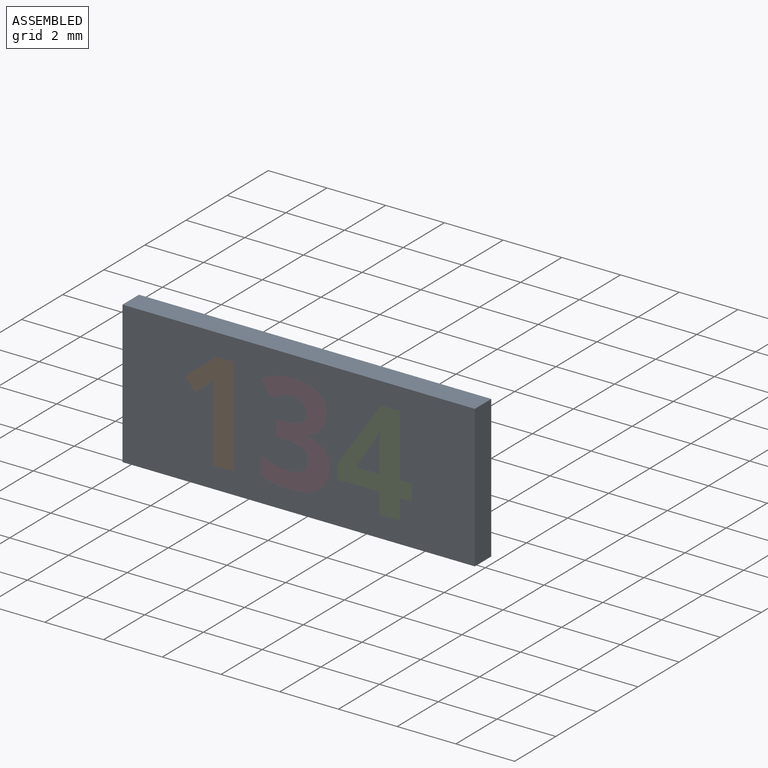
[diagram: assembled view]
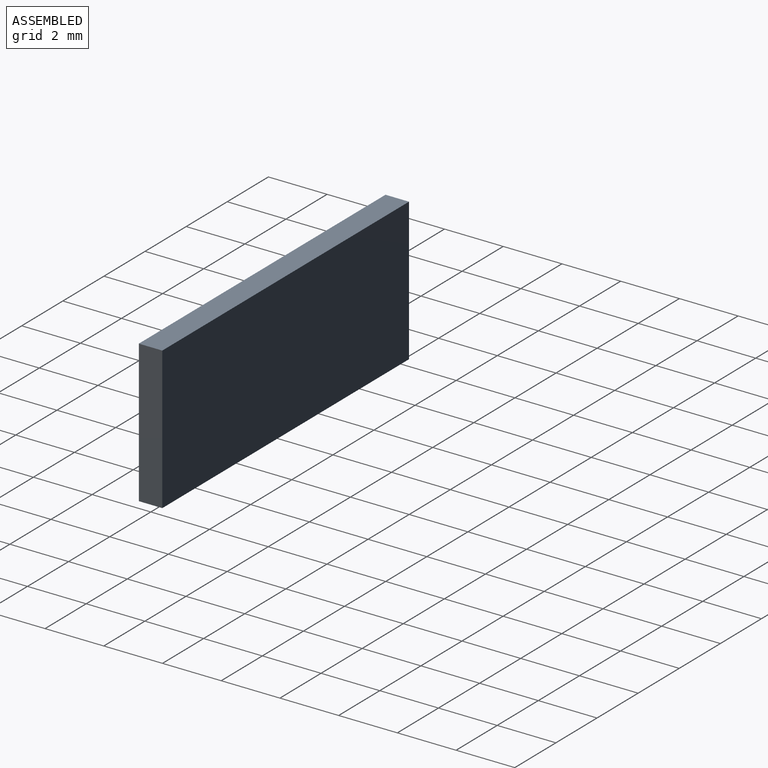
[diagram: assembled view, second angle]
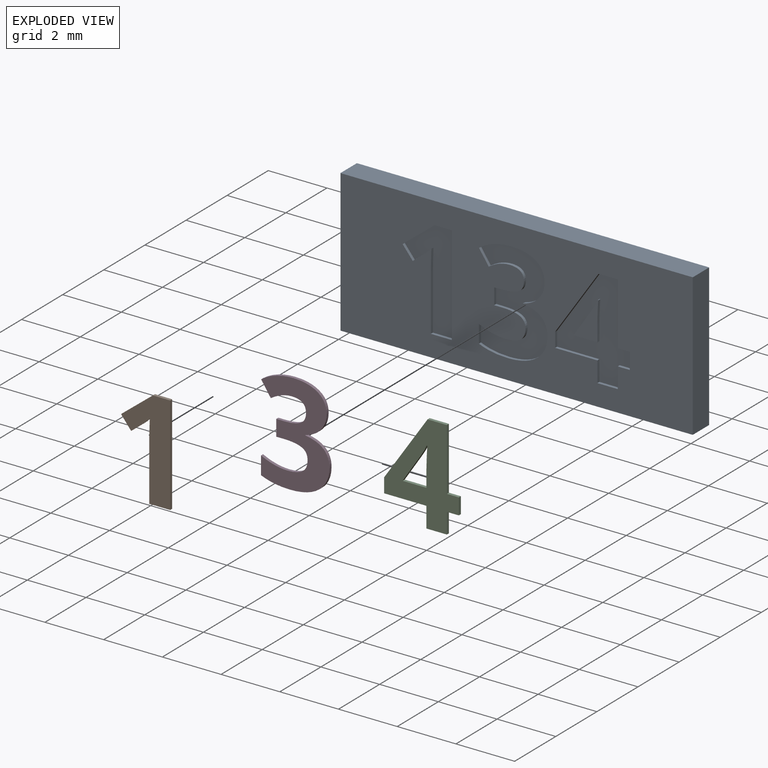
[diagram: exploded view]
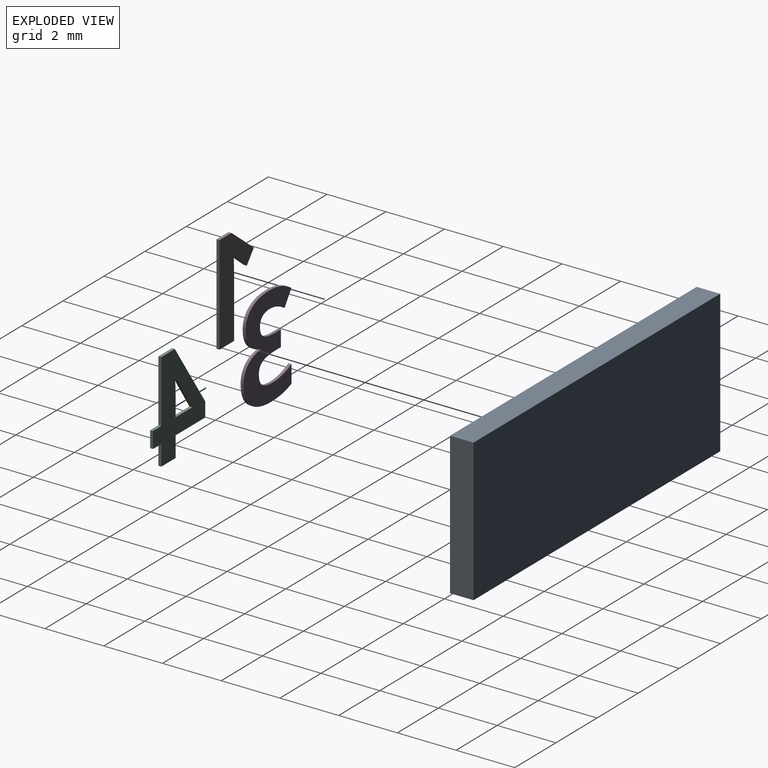
[diagram: exploded view, second angle]
ASSEMBLY  parts=4 mates=3
PART A: 65 faces, bbox 12x0.8x4.9 mm
  f0: plane 12x4.85mm, normal (0,-1,0), area 46.2mm2, adj f1,f2,f3,f4,f6,f7,f8,f9
  f1: plane 12x0.8mm, normal (0,0,-1), area 9.6mm2, adj f0,f2,f4,f5
  f2: plane 4.85x0.8mm, normal (1,0,0), area 3.9mm2, adj f0,f1,f3,f5
  f3: plane 12x0.8mm, normal (0,0,1), area 9.6mm2, adj f0,f2,f4,f5
  f4: plane 4.85x0.8mm, normal (-1,0,0), area 3.9mm2, adj f0,f1,f3,f5
  f5: plane 12x4.85mm, normal (0,1,0), area 58.2mm2, adj f1,f2,f3,f4
  f6: plane 0.55x0.1mm, normal (-1,0,0), area 0.1mm2, adj f0,f7,f23,f24
  f7: plane 0.41x0.1mm, normal (0,0,-1), area 0mm2, adj f0,f6,f8,f24
  f8: plane 2.12x0.1mm, normal (-1,0,0), area 0.2mm2, adj f0,f7,f9,f24
  f9: plane 0.66x0.1mm, normal (0,0,-1), area 0.1mm2, adj f0,f8,f10,f24
  f10: plane 2.18x1.48mm, normal (0.83,0,-0.56), area 0.3mm2, adj f0,f9,f11,f24
  f11: plane 0.5x0.1mm, normal (1,0,0), area 0mm2, adj f0,f10,f12,f24
  f12: plane 1.44x0.1mm, normal (0,0,1), area 0.1mm2, adj f0,f11,f13,f24
  f13: plane 0.7x0.1mm, normal (1,0,0), area 0.1mm2, adj f0,f12,f14,f24
  f14: plane 0.7x0.1mm, normal (0,0,1), area 0.1mm2, adj f0,f13,f15,f24
  f15: plane 0.7x0.1mm, normal (-1,0,0), area 0.1mm2, adj f0,f14,f23,f24
  f16: plane 0.81x0.1mm, normal (0,0,-1), area 0.1mm2, adj f17,f22,f24,f25
  f17: plane 0.93x0.62mm, normal (-0.83,0,0.55), area 0.1mm2, adj f16,f18,f24,f25
  f18: extruded ~0.37x0.21mm, area 0mm2, adj f17,f19,f24,f25
  f19: plane 0.1x0.02mm, normal (0,0,1), area 0mm2, adj f18,f20,f24,f25
  f20: extruded ~0.32x0.1mm, area 0mm2, adj f19,f21,f24,f25
  f21: extruded ~0.42x0.1mm, area 0mm2, adj f20,f22,f24,f25
  f22: plane 0.57x0.1mm, normal (1,0,0), area 0.1mm2, adj f16,f21,f24,f25
  f23: plane 0.41x0.1mm, normal (0,0,1), area 0mm2, adj f0,f6,f15,f24
  f24: plane 3.37x2.54mm, normal (0,-1,0), area 4.3mm2, adj f6,f7,f8,f9,f10,f11,f12,f13
  f25: plane 1.3x0.84mm, normal (0,-1,0), area 0.5mm2, adj f16,f17,f18,f19,f20,f21,f22
  f26: extruded ~0.59x0.3mm, area 0.1mm2, adj f0,f27,f52,f53
  f27: extruded ~0.83x0.21mm, area 0.1mm2, adj f0,f26,f28,f53
  f28: extruded ~1.1x0.33mm, area 0.1mm2, adj f0,f27,f29,f53
  f29: plane 0.49x0.33mm, normal (0.83,0,0.56), area 0.1mm2, adj f0,f28,f30,f53
  f30: extruded ~0.38x0.19mm, area 0mm2, adj f0,f29,f31,f53
  f31: extruded ~0.34x0.1mm, area 0mm2, adj f0,f30,f32,f53
  f32: extruded ~0.48x0.38mm, area 0.1mm2, adj f0,f31,f33,f53
  f33: extruded ~0.35x0.18mm, area 0mm2, adj f0,f32,f34,f53
  f34: extruded ~0.57x0.1mm, area 0.1mm2, adj f0,f33,f35,f53
  f35: plane 0.26x0.1mm, normal (0,0,-1), area 0mm2, adj f0,f34,f36,f53
  f36: plane 0.55x0.1mm, normal (1,0,0), area 0.1mm2, adj f0,f35,f37,f53
  f37: plane 0.26x0.1mm, normal (0,0,1), area 0mm2, adj f0,f36,f38,f53
  f38: extruded ~0.62x0.1mm, area 0.1mm2, adj f0,f37,f39,f53
  f39: extruded ~0.34x0.19mm, area 0mm2, adj f0,f38,f40,f53
  f40: extruded ~0.39x0.17mm, area 0mm2, adj f0,f39,f41,f53
  f41: extruded ~0.52x0.12mm, area 0.1mm2, adj f0,f40,f42,f53
  f42: extruded ~0.47x0.1mm, area 0mm2, adj f0,f41,f43,f53
  f43: extruded ~0.43x0.16mm, area 0mm2, adj f0,f42,f44,f53
  f44: plane 0.61x0.1mm, normal (1,0,0), area 0.1mm2, adj f0,f43,f45,f53
  f45: extruded ~0.97x0.18mm, area 0.1mm2, adj f0,f44,f46,f53
  f46: extruded ~1.01x0.27mm, area 0.1mm2, adj f0,f45,f47,f53
  f47: extruded ~0.76x0.35mm, area 0.1mm2, adj f0,f46,f48,f53
  f48: extruded ~0.53x0.21mm, area 0.1mm2, adj f0,f47,f49,f53
  f49: extruded ~0.62x0.25mm, area 0.1mm2, adj f0,f48,f50,f53
  f50: plane 0.1x0.01mm, normal (-1,0,0), area 0mm2, adj f0,f49,f51,f53
  f51: extruded ~0.54x0.3mm, area 0.1mm2, adj f0,f50,f52,f53
  f52: extruded ~0.54x0.19mm, area 0.1mm2, adj f0,f26,f51,f53
  f53: plane 3.47x2.33mm, normal (0,-1,0), area 4.3mm2, adj f26,f27,f28,f29,f30,f31,f32,f33
  f54: plane 3.37x0.1mm, normal (-1,0,0), area 0.3mm2, adj f0,f55,f63,f64
  f55: plane 0.59x0.1mm, normal (0,0,-1), area 0.1mm2, adj f0,f54,f56,f64
  f56: plane 1.09x0.86mm, normal (0.62,0,-0.78), area 0.1mm2, adj f0,f55,f57,f64
  f57: plane 0.43x0.34mm, normal (0.78,0,0.63), area 0.1mm2, adj f0,f56,f58,f64
  f58: plane 0.39x0.31mm, normal (-0.63,0,0.78), area 0mm2, adj f0,f57,f59,f64
  f59: extruded ~0.25x0.23mm, area 0mm2, adj f0,f58,f60,f64
  f60: plane 0.35x0.1mm, normal (1,0,-0.03), area 0mm2, adj f0,f59,f61,f64
  f61: plane 0.32x0.1mm, normal (1,0,-0.02), area 0mm2, adj f0,f60,f62,f64
  f62: plane 1.95x0.1mm, normal (1,0,0), area 0.2mm2, adj f0,f61,f63,f64
  f63: plane 0.71x0.1mm, normal (0,0,1), area 0.1mm2, adj f0,f54,f62,f64
  f64: plane 3.37x1.67mm, normal (0,-1,0), area 2.9mm2, adj f54,f55,f56,f57,f58,f59,f60,f61
PART B: 12 faces, bbox 1.7x0.1x3.4 mm
  f0: plane 3.37x1.67mm, normal (0,-1,0), area 2.9mm2, adj f1,f2,f3,f4,f5,f6,f7,f9
  f1: plane 0.59x0.1mm, normal (0,0,1), area 0.1mm2, adj f0,f2,f8,f10
  f2: plane 1.09x0.86mm, normal (-0.62,0,0.78), area 0.1mm2, adj f0,f1,f3,f8
  f3: plane 0.43x0.34mm, normal (-0.78,0,-0.63), area 0.1mm2, adj f0,f2,f4,f8
  f4: plane 0.39x0.31mm, normal (0.63,0,-0.78), area 0mm2, adj f0,f3,f5,f8
  f5: extruded ~0.25x0.23mm, area 0mm2, adj f0,f4,f6,f8
  f6: plane 0.35x0.1mm, normal (-1,0,0.03), area 0mm2, adj f0,f5,f7,f8
  f7: plane 0.32x0.1mm, normal (-1,0,0.02), area 0mm2, adj f0,f6,f8,f9
  f8: plane 3.37x1.67mm, normal (0,1,0), area 2.9mm2, adj f1,f2,f3,f4,f5,f6,f7,f9
  f9: plane 1.95x0.1mm, normal (-1,0,0), area 0.2mm2, adj f0,f7,f8,f11
  f10: plane 3.37x0.1mm, normal (1,0,0), area 0.3mm2, adj f0,f1,f8,f11
  f11: plane 0.71x0.1mm, normal (0,0,-1), area 0.1mm2, adj f0,f8,f9,f10
PART C: 20 faces, bbox 2.5x0.1x3.4 mm
  f0: plane 3.37x2.54mm, normal (0,-1,0), area 4.3mm2, adj f1,f2,f3,f4,f5,f6,f7,f8
  f1: plane 0.41x0.1mm, normal (0,0,1), area 0mm2, adj f0,f2,f13,f15
  f2: plane 2.12x0.1mm, normal (1,0,0), area 0.2mm2, adj f0,f1,f3,f13
  f3: plane 0.66x0.1mm, normal (0,0,1), area 0.1mm2, adj f0,f2,f4,f13
  f4: plane 2.18x1.48mm, normal (-0.83,0,0.56), area 0.3mm2, adj f0,f3,f5,f13
  f5: plane 0.5x0.1mm, normal (-1,0,0), area 0mm2, adj f0,f4,f6,f13
  f6: plane 1.44x0.1mm, normal (0,0,-1), area 0.1mm2, adj f0,f5,f7,f13
  f7: plane 0.7x0.1mm, normal (-1,0,0), area 0.1mm2, adj f0,f6,f8,f13
  f8: plane 0.7x0.1mm, normal (0,0,-1), area 0.1mm2, adj f0,f7,f13,f14
  f9: plane 0.93x0.62mm, normal (0.83,0,-0.55), area 0.1mm2, adj f0,f10,f13,f18
  f10: extruded ~0.37x0.21mm, area 0mm2, adj f0,f9,f11,f13
  f11: plane 0.1x0.02mm, normal (0,0,-1), area 0mm2, adj f0,f10,f12,f13
  f12: extruded ~0.32x0.1mm, area 0mm2, adj f0,f11,f13,f17
  f13: plane 3.37x2.54mm, normal (0,1,0), area 4.3mm2, adj f1,f2,f3,f4,f5,f6,f7,f8
  f14: plane 0.7x0.1mm, normal (1,0,0), area 0.1mm2, adj f0,f8,f13,f16
  f15: plane 0.55x0.1mm, normal (1,0,0), area 0.1mm2, adj f0,f1,f13,f16
  f16: plane 0.41x0.1mm, normal (0,0,-1), area 0mm2, adj f0,f13,f14,f15
  f17: extruded ~0.42x0.1mm, area 0mm2, adj f0,f12,f13,f19
  f18: plane 0.81x0.1mm, normal (0,0,1), area 0.1mm2, adj f0,f9,f13,f19
  f19: plane 0.57x0.1mm, normal (-1,0,0), area 0.1mm2, adj f0,f13,f17,f18
PART D: 29 faces, bbox 2.3x0.1x3.5 mm
  f0: plane 3.47x2.33mm, normal (0,-1,0), area 4.3mm2, adj f1,f2,f3,f4,f5,f6,f7,f8
  f1: extruded ~0.83x0.21mm, area 0.1mm2, adj f0,f2,f25,f27
  f2: extruded ~1.1x0.33mm, area 0.1mm2, adj f0,f1,f3,f25
  f3: plane 0.49x0.33mm, normal (-0.83,0,-0.56), area 0.1mm2, adj f0,f2,f4,f25
  f4: extruded ~0.38x0.19mm, area 0mm2, adj f0,f3,f5,f25
  f5: extruded ~0.34x0.1mm, area 0mm2, adj f0,f4,f6,f25
  f6: extruded ~0.48x0.38mm, area 0.1mm2, adj f0,f5,f7,f25
  f7: extruded ~0.35x0.18mm, area 0mm2, adj f0,f6,f8,f25
  f8: extruded ~0.57x0.1mm, area 0.1mm2, adj f0,f7,f9,f25
  f9: plane 0.26x0.1mm, normal (0,0,1), area 0mm2, adj f0,f8,f10,f25
  f10: plane 0.55x0.1mm, normal (-1,0,0), area 0.1mm2, adj f0,f9,f11,f25
  f11: plane 0.26x0.1mm, normal (0,0,-1), area 0mm2, adj f0,f10,f12,f25
  f12: extruded ~0.62x0.1mm, area 0.1mm2, adj f0,f11,f13,f25
  f13: extruded ~0.34x0.19mm, area 0mm2, adj f0,f12,f14,f25
  f14: extruded ~0.39x0.17mm, area 0mm2, adj f0,f13,f15,f25
  f15: extruded ~0.52x0.12mm, area 0.1mm2, adj f0,f14,f16,f25
  f16: extruded ~0.47x0.1mm, area 0mm2, adj f0,f15,f17,f25
  f17: extruded ~0.43x0.16mm, area 0mm2, adj f0,f16,f18,f25
  f18: plane 0.61x0.1mm, normal (-1,0,0), area 0.1mm2, adj f0,f17,f19,f25
  f19: extruded ~0.97x0.18mm, area 0.1mm2, adj f0,f18,f20,f25
  f20: extruded ~1.01x0.27mm, area 0.1mm2, adj f0,f19,f21,f25
  f21: extruded ~0.76x0.35mm, area 0.1mm2, adj f0,f20,f22,f25
  f22: extruded ~0.53x0.21mm, area 0.1mm2, adj f0,f21,f23,f25
  f23: extruded ~0.62x0.25mm, area 0.1mm2, adj f0,f22,f24,f25
  f24: plane 0.1x0.01mm, normal (1,0,0), area 0mm2, adj f0,f23,f25,f26
  f25: plane 3.47x2.33mm, normal (0,1,0), area 4.3mm2, adj f1,f2,f3,f4,f5,f6,f7,f8
  f26: extruded ~0.54x0.3mm, area 0.1mm2, adj f0,f24,f25,f28
  f27: extruded ~0.59x0.3mm, area 0.1mm2, adj f0,f1,f25,f28
  f28: extruded ~0.54x0.19mm, area 0.1mm2, adj f0,f25,f26,f27
PLACE A t=(-0.05,0.36,-0.02)mm
PLACE B t=(-4.65,0.36,-0.02)mm
PLACE C t=(1.08,0.36,-0.02)mm
PLACE D t=(-1.67,0.36,-0.02)mm
MATE fastened B.f0 <-> A.f0  axis (0,-1,0) through (-2.97,-0.44,-1.72)mm
MATE fastened D.f0 <-> A.f0  axis (0,-1,0) through (-1.33,-0.44,-1.58)mm
MATE fastened C.f0 <-> A.f0  axis (0,-1,0) through (2.7,-0.44,-1.72)mm
